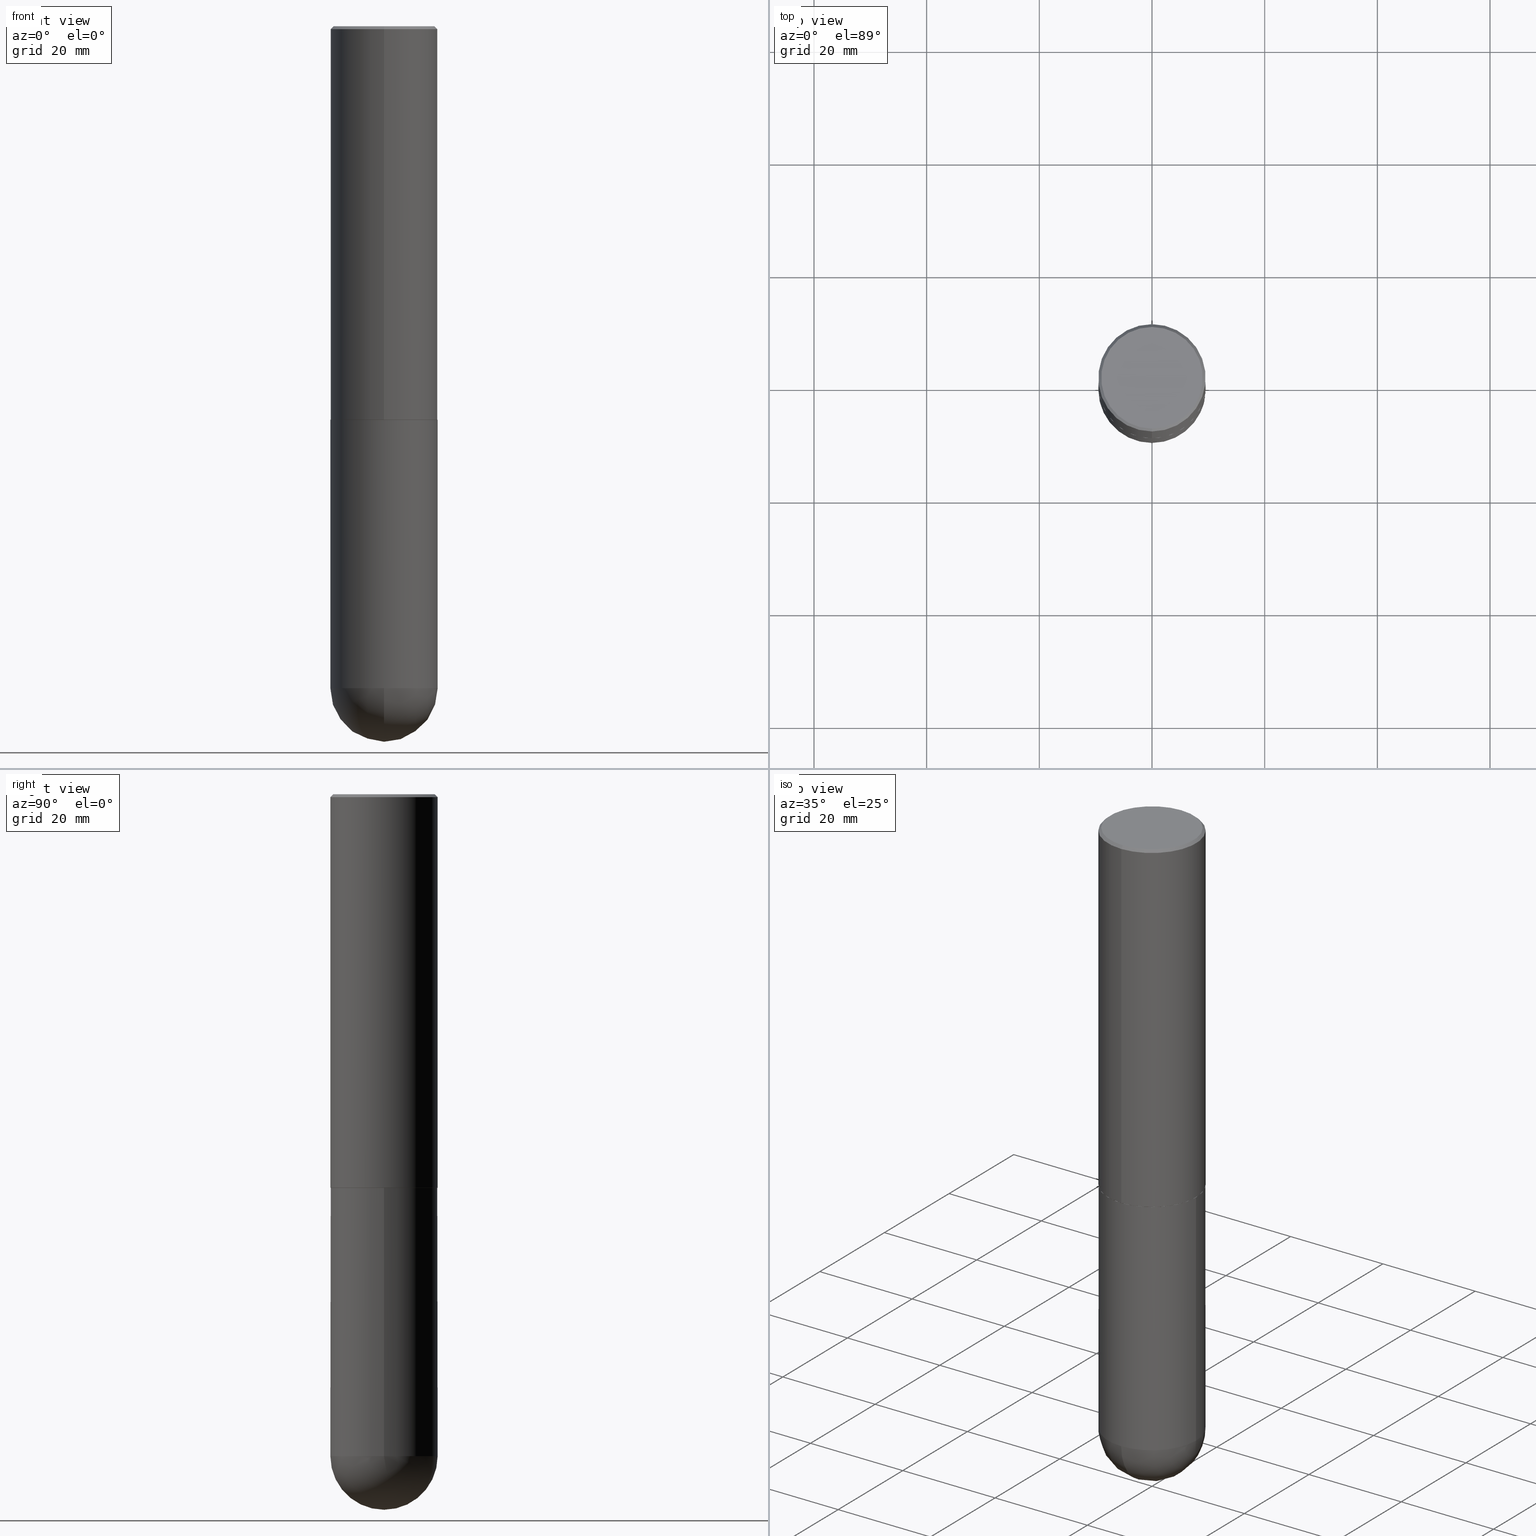
[diagram: canonical four-view strip — front | top / right | iso, engineering-drawing reading convention]
A machine part, canonical four-view strip (front | top / right | iso — engineering-drawing reading convention). The complete STEP part file that produces these views, byte-faithful:
ISO-10303-21;
HEADER;
FILE_DESCRIPTION (( 'STEP AP203' ),
    '1' );
FILE_NAME ('31788.STEP',
    '2024-02-21T16:55:15',
    ( '' ),
    ( '' ),
    'SwSTEP 2.0',
    'SolidWorks 2023',
    '' );
FILE_SCHEMA (( 'CONFIG_CONTROL_DESIGN' ));
ENDSEC;

DATA;
#1 = ADVANCED_FACE ( 'NONE', ( #82 ), #261, .F. ) ;
#2 = ORIENTED_EDGE ( 'NONE', *, *, #32, .T. ) ;
#3 = CARTESIAN_POINT ( 'NONE',  ( 1.131029322860625676E-28, -1.614810119214955014E-14, -4.625000000000000000 ) ) ;
#4 = CARTESIAN_POINT ( 'NONE',  ( -2.572686749164323153E-15, -0.3750000000000000555, -0.01999999999999877570 ) ) ;
#5 = DIRECTION ( 'NONE',  ( -2.444844981584964810E-29, 3.492374691176482632E-15, 1.000000000000000000 ) ) ;
#6 = DIRECTION ( 'NONE',  ( -6.982962677686266711E-15, -1.000000000000000000, 2.921762560068730595E-15 ) ) ;
#7 = EDGE_CURVE ( 'NONE', #310, #104, #276, .T. ) ;
#8 = CIRCLE ( 'NONE', #312, 0.3750000000000003886 ) ;
#9 = LOCAL_TIME ( 11, 55, 15.00000000000000000, #364 ) ;
#10 = VERTEX_POINT ( 'NONE', #109 ) ;
#11 = DIRECTION ( 'NONE',  ( -1.000000000000000000, 6.982962677686266711E-15, -4.883557194083113462E-29 ) ) ;
#12 = EDGE_LOOP ( 'NONE', ( #75, #291 ) ) ;
#13 = EDGE_LOOP ( 'NONE', ( #375, #194, #42, #262 ) ) ;
#14 = CARTESIAN_POINT ( 'NONE',  ( 6.720878854377069375E-29, -9.600538026044152034E-15, -2.749000000000000110 ) ) ;
#15 = PERSON_AND_ORGANIZATION_ROLE ( 'design_supplier' ) ;
#16 = AXIS2_PLACEMENT_3D ( 'NONE', #3, #136, #168 ) ;
#17 = CLOSED_SHELL ( 'NONE', ( #223, #153, #371, #296, #76 ) ) ;
#18 = EDGE_CURVE ( 'NONE', #154, #166, #46, .T. ) ;
#19 = APPROVAL_STATUS ( 'not_yet_approved' ) ;
#20 = DIRECTION ( 'NONE',  ( -2.444844981584964810E-29, 3.492374691176482632E-15, 1.000000000000000000 ) ) ;
#21 = DIRECTION ( 'NONE',  ( -2.445468806185136877E-29, 3.491481338843145188E-15, 1.000000000000000000 ) ) ;
#22 = ADVANCED_FACE ( 'NONE', ( #328 ), #321, .T. ) ;
#23 = AXIS2_PLACEMENT_3D ( 'NONE', #120, #307, #103 ) ;
#24 = CC_DESIGN_SECURITY_CLASSIFICATION ( #345, ( #266 ) ) ;
#25 = DIRECTION ( 'NONE',  ( -6.982962677686265922E-15, -1.000000000000000000, 3.492374691176482238E-15 ) ) ;
#26 = EDGE_CURVE ( 'NONE', #264, #188, #156, .T. ) ;
#27 = SPHERICAL_SURFACE ( 'NONE', #152, 0.3750000000000003886 ) ;
#28 = CARTESIAN_POINT ( 'NONE',  ( 6.723323699358650636E-29, -9.604030400735325562E-15, -2.749999999999999556 ) ) ;
#29 = ORIENTED_EDGE ( 'NONE', *, *, #301, .T. ) ;
#30 = CARTESIAN_POINT ( 'NONE',  ( -2.611628041454596160E-15, -0.3740000000000096581, -2.749999999999998224 ) ) ;
#31 = DIRECTION ( 'NONE',  ( -2.444844981584965091E-29, 3.492374691176482238E-15, 1.000000000000000000 ) ) ;
#32 = EDGE_CURVE ( 'NONE', #135, #392, #211, .T. ) ;
#33 = ORIENTED_EDGE ( 'NONE', *, *, #229, .T. ) ;
#34 = DIRECTION ( 'NONE',  ( 2.438088387897960049E-29, -3.491481338843145188E-15, -1.000000000000000000 ) ) ;
#35 = ORGANIZATION ( 'UNSPECIFIED', 'UNSPECIFIED', '' ) ;
#36 = CARTESIAN_POINT ( 'NONE',  ( 0.000000000000000000, 0.000000000000000000, 0.000000000000000000 ) ) ;
#37 = EDGE_LOOP ( 'NONE', ( #218, #236, #191, #128 ) ) ;
#38 = CARTESIAN_POINT ( 'NONE',  ( 4.889689963169950991E-31, -6.984749382352994551E-17, -0.02000000000000008715 ) ) ;
#39 = CARTESIAN_POINT ( 'NONE',  ( -2.504081769186607427E-15, -0.3549999999999997602, 1.398045117579700195E-15 ) ) ;
#40 = ADVANCED_FACE ( 'NONE', ( #47 ), #87, .T. ) ;
#41 = FACE_OUTER_BOUND ( 'NONE', #163, .T. ) ;
#42 = ORIENTED_EDGE ( 'NONE', *, *, #251, .F. ) ;
#43 = DIRECTION ( 'NONE',  ( -7.105427357600999492E-15, -1.000000000000000000, 0.000000000000000000 ) ) ;
#44 = SHAPE_DEFINITION_REPRESENTATION ( #224, #183 ) ;
#45 = CARTESIAN_POINT ( 'NONE',  ( 6.723323699358650636E-29, -9.604030400735325562E-15, -2.749999999999999556 ) ) ;
#46 = CIRCLE ( 'NONE', #126, 0.3739999999999999991 ) ;
#47 = FACE_OUTER_BOUND ( 'NONE', #314, .T. ) ;
#48 = PERSON_AND_ORGANIZATION_ROLE ( 'creator' ) ;
#49 = CARTESIAN_POINT ( 'NONE',  ( 0.000000000000000000, 0.000000000000000000, 0.000000000000000000 ) ) ;
#50 = ADVANCED_FACE ( 'NONE', ( #107 ), #326, .T. ) ;
#51 = APPROVAL_ROLE ( '' ) ;
#52 = CARTESIAN_POINT ( 'NONE',  ( 0.3750000000000001110, -2.618611004132350411E-15, 1.828566290923476483E-29 ) ) ;
#53 = CARTESIAN_POINT ( 'NONE',  ( 6.720878854377069375E-29, -9.600538026044152034E-15, -2.749000000000000110 ) ) ;
#54 = CIRCLE ( 'NONE', #219, 0.3549999999999997602 ) ;
#55 = COORDINATED_UNIVERSAL_TIME_OFFSET ( 5, 0, .BEHIND. ) ;
#56 = APPROVAL_PERSON_ORGANIZATION ( #234, #309, #361 ) ;
#57 = CLOSED_SHELL ( 'NONE', ( #117, #93, #40, #358, #22, #50, #244, #1 ) ) ;
#58 = LINE ( 'NONE', #185, #157 ) ;
#59 = PERSON_AND_ORGANIZATION_ROLE ( 'classification_officer' ) ;
#60 = EDGE_CURVE ( 'NONE', #354, #137, #140, .T. ) ;
#61 = CARTESIAN_POINT ( 'NONE',  ( -0.3750000000000001110, -1.021030217788372352E-14, -4.625000000000000000 ) ) ;
#62 = CARTESIAN_POINT ( 'NONE',  ( -3.869018579184010415E-45, 5.526756365908368716E-31, 1.582521022120498680E-16 ) ) ;
#63 = VECTOR ( 'NONE', #409, 39.37007874015748143 ) ;
#64 = DIRECTION ( 'NONE',  ( -2.445468806185136597E-29, 3.491481338843145583E-15, 1.000000000000000000 ) ) ;
#65 = CARTESIAN_POINT ( 'NONE',  ( 2.618611004132350016E-15, 0.3749999999999998890, -0.02000000000000139513 ) ) ;
#66 = CARTESIAN_POINT ( 'NONE',  ( 2.660982545421643429E-15, 0.3739999999999903957, -2.750000000000000444 ) ) ;
#67 = AXIS2_PLACEMENT_3D ( 'NONE', #213, #277, #369 ) ;
#68 = LENGTH_MEASURE_WITH_UNIT ( LENGTH_MEASURE( 0.02539999999999999897 ), #308 );
#69 = EDGE_LOOP ( 'NONE', ( #114, #225, #252, #322 ) ) ;
#70 = EDGE_CURVE ( 'NONE', #154, #188, #116, .T. ) ;
#71 = VERTEX_POINT ( 'NONE', #61 ) ;
#72 = ORIENTED_EDGE ( 'NONE', *, *, #145, .F. ) ;
#73 = LINE ( 'NONE', #4, #351 ) ;
#74 = AXIS2_PLACEMENT_3D ( 'NONE', #386, #390, #206 ) ;
#75 = ORIENTED_EDGE ( 'NONE', *, *, #272, .F. ) ;
#76 = ADVANCED_FACE ( 'NONE', ( #303 ), #300, .T. ) ;
#77 = ORIENTED_EDGE ( 'NONE', *, *, #7, .T. ) ;
#78 = DIRECTION ( 'NONE',  ( -2.444844981584964810E-29, 3.492374691176482632E-15, 1.000000000000000000 ) ) ;
#79 = VECTOR ( 'NONE', #92, 39.37007874015748143 ) ;
#80 = CC_DESIGN_APPROVAL ( #171, ( #345 ) ) ;
#81 =( NAMED_UNIT ( * ) SI_UNIT ( $, .STERADIAN. ) SOLID_ANGLE_UNIT ( ) );
#82 = FACE_OUTER_BOUND ( 'NONE', #410, .T. ) ;
#83 = EDGE_CURVE ( 'NONE', #408, #310, #367, .T. ) ;
#84 = CARTESIAN_POINT ( 'NONE',  ( 0.000000000000000000, 0.000000000000000000, 0.000000000000000000 ) ) ;
#85 = APPROVAL_ROLE ( '' ) ;
#86 = PERSON_AND_ORGANIZATION_ROLE ( 'creator' ) ;
#87 = CONICAL_SURFACE ( 'NONE', #227, 0.3749999999999999445, 0.7853981633974471688 ) ;
#88 = AXIS2_PLACEMENT_3D ( 'NONE', #28, #134, #6 ) ;
#89 = APPLICATION_CONTEXT ( 'configuration controlled 3d designs of mechanical parts and assemblies' ) ;
#90 = EDGE_CURVE ( 'NONE', #264, #135, #58, .T. ) ;
#91 = DIRECTION ( 'NONE',  ( -2.444844981584964810E-29, 3.492374691176482632E-15, 1.000000000000000000 ) ) ;
#92 = DIRECTION ( 'NONE',  ( -4.937700262167413974E-15, -0.7071067811869555797, 0.7071067811861394548 ) ) ;
#93 = ADVANCED_FACE ( 'NONE', ( #245 ), #270, .T. ) ;
#94 = DIRECTION ( 'NONE',  ( -6.982962677686266711E-15, -1.000000000000000000, 3.492374691176482238E-15 ) ) ;
#95 = PRODUCT_RELATED_PRODUCT_CATEGORY ( 'detail', '', ( #332 ) ) ;
#96 = CIRCLE ( 'NONE', #125, 0.3750000000000001110 ) ;
#97 = LOCAL_TIME ( 11, 55, 15.00000000000000000, #273 ) ;
#98 = DIMENSIONAL_EXPONENTS ( 1.000000000000000000, 0.000000000000000000, 0.000000000000000000, 0.000000000000000000, 0.000000000000000000, 0.000000000000000000, 0.000000000000000000 ) ;
#99 = EDGE_LOOP ( 'NONE', ( #387, #233, #283, #150 ) ) ;
#100 = CARTESIAN_POINT ( 'NONE',  ( -2.664535259100265651E-15, -0.3750000000000165978, -4.624999999999999112 ) ) ;
#101 = DIRECTION ( 'NONE',  ( -1.000000000000000000, 7.105427357601001070E-15, -4.926315508542082329E-29 ) ) ;
#102 = ORIENTED_EDGE ( 'NONE', *, *, #164, .T. ) ;
#103 = DIRECTION ( 'NONE',  ( 1.000000000000000000, -6.982962677686270655E-15, 0.000000000000000000 ) ) ;
#104 = VERTEX_POINT ( 'NONE', #298 ) ;
#105 = VECTOR ( 'NONE', #400, 39.37007874015748143 ) ;
#106 = LINE ( 'NONE', #320, #63 ) ;
#107 = FACE_OUTER_BOUND ( 'NONE', #37, .T. ) ;
#108 = CARTESIAN_POINT ( 'NONE',  ( -0.3750000000000001110, 2.664535259100376486E-15, -1.844600658845590159E-29 ) ) ;
#109 = CARTESIAN_POINT ( 'NONE',  ( 2.548781377355486324E-15, 0.3549999999999997602, -1.081540913155600656E-15 ) ) ;
#110 = ORIENTED_EDGE ( 'NONE', *, *, #90, .F. ) ;
#111 = DIRECTION ( 'NONE',  ( 1.000000000000000000, 0.000000000000000000, 0.000000000000000000 ) ) ;
#112 = EDGE_CURVE ( 'NONE', #192, #10, #54, .T. ) ;
#113 = AXIS2_PLACEMENT_3D ( 'NONE', #412, #131, #253 ) ;
#114 = ORIENTED_EDGE ( 'NONE', *, *, #301, .F. ) ;
#115 = APPROVAL_STATUS ( 'not_yet_approved' ) ;
#116 = LINE ( 'NONE', #151, #105 ) ;
#117 = ADVANCED_FACE ( 'NONE', ( #149 ), #242, .T. ) ;
#118 = PERSON ( 'UNSPECIFIED', 'UNSPECIFIED', 'UNSPECIFIED', ('UNSPECIFIED'), ('UNSPECIFIED'), ('UNSPECIFIED') ) ;
#119 = AXIS2_PLACEMENT_3D ( 'NONE', #286, #226, #317 ) ;
#120 = CARTESIAN_POINT ( 'NONE',  ( 1.131029322860625676E-28, -1.614810119214955014E-14, -4.625000000000000000 ) ) ;
#121 = DIRECTION ( 'NONE',  ( 6.982962677686265922E-15, 1.000000000000000000, 0.000000000000000000 ) ) ;
#122 = EDGE_CURVE ( 'NONE', #188, #264, #380, .T. ) ;
#123 = LINE ( 'NONE', #30, #79 ) ;
#124 = DIRECTION ( 'NONE',  ( -2.445468806185136597E-29, 3.491481338843145583E-15, 1.000000000000000000 ) ) ;
#125 = AXIS2_PLACEMENT_3D ( 'NONE', #246, #64, #216 ) ;
#126 = AXIS2_PLACEMENT_3D ( 'NONE', #352, #78, #232 ) ;
#127 = EDGE_LOOP ( 'NONE', ( #348, #198, #162, #316, #132 ) ) ;
#128 = ORIENTED_EDGE ( 'NONE', *, *, #122, .F. ) ;
#129 = CARTESIAN_POINT ( 'NONE',  ( 1.191225862093391378E-28, -1.790862693487176734E-14, -5.000000000000000000 ) ) ;
#130 = AXIS2_PLACEMENT_3D ( 'NONE', #315, #34, #159 ) ;
#131 = DIRECTION ( 'NONE',  ( 2.444844981584964810E-29, -3.492374691176482632E-15, -1.000000000000000000 ) ) ;
#132 = ORIENTED_EDGE ( 'NONE', *, *, #251, .T. ) ;
#133 = EDGE_CURVE ( 'NONE', #166, #264, #123, .T. ) ;
#134 = DIRECTION ( 'NONE',  ( -2.444844981584964810E-29, 3.492374691176482632E-15, 1.000000000000000000 ) ) ;
#135 = VERTEX_POINT ( 'NONE', #311 ) ;
#136 = DIRECTION ( 'NONE',  ( -2.445468806185136597E-29, 3.491481338843145583E-15, 1.000000000000000000 ) ) ;
#137 = VERTEX_POINT ( 'NONE', #382 ) ;
#138 = DIRECTION ( 'NONE',  ( -6.982962677686266711E-15, -1.000000000000000000, 3.494488891895537218E-15 ) ) ;
#139 = CYLINDRICAL_SURFACE ( 'NONE', #378, 0.3750000000000001110 ) ;
#140 = CIRCLE ( 'NONE', #170, 0.3750000000000003886 ) ;
#141 = APPROVAL_PERSON_ORGANIZATION ( #398, #201, #85 ) ;
#142 = ORIENTED_EDGE ( 'NONE', *, *, #193, .T. ) ;
#143 = EDGE_LOOP ( 'NONE', ( #384, #102, #346, #72 ) ) ;
#144 = APPLICATION_PROTOCOL_DEFINITION ( 'international standard', 'config_control_design', 1994, #187 ) ;
#145 = EDGE_CURVE ( 'NONE', #137, #71, #96, .T. ) ;
#146 = DIRECTION ( 'NONE',  ( -6.982962677686265922E-15, -1.000000000000000000, 2.913971193241877216E-15 ) ) ;
#147 = PERSON_AND_ORGANIZATION ( #118, #35 ) ;
#148 = AXIS2_PLACEMENT_3D ( 'NONE', #304, #368, #111 ) ;
#149 = FACE_OUTER_BOUND ( 'NONE', #99, .T. ) ;
#150 = ORIENTED_EDGE ( 'NONE', *, *, #133, .F. ) ;
#151 = CARTESIAN_POINT ( 'NONE',  ( 2.657429831742841742E-15, 0.3739999999999903957, -2.750000000000000444 ) ) ;
#152 = AXIS2_PLACEMENT_3D ( 'NONE', #376, #383, #196 ) ;
#153 = ADVANCED_FACE ( 'NONE', ( #248 ), #27, .T. ) ;
#154 = VERTEX_POINT ( 'NONE', #66 ) ;
#155 = MANIFOLD_SOLID_BREP ( 'Body-Move/Copy2[1]', #17 ) ;
#156 = CIRCLE ( 'NONE', #258, 0.3750000000000004441 ) ;
#157 = VECTOR ( 'NONE', #181, 39.37007874015748143 ) ;
#158 = AXIS2_PLACEMENT_3D ( 'NONE', #36, #203, #292 ) ;
#159 = DIRECTION ( 'NONE',  ( -1.000000000000000000, 6.982962677686265922E-15, -4.876176775795935793E-29 ) ) ;
#160 = DIRECTION ( 'NONE',  ( -4.851104656540957964E-15, -0.7071067811865491270, -0.7071067811865459074 ) ) ;
#161 = CIRCLE ( 'NONE', #215, 0.3549999999999997602 ) ;
#162 = ORIENTED_EDGE ( 'NONE', *, *, #7, .F. ) ;
#163 = EDGE_LOOP ( 'NONE', ( #77, #33 ) ) ;
#164 = EDGE_CURVE ( 'NONE', #354, #362, #8, .T. ) ;
#165 = CARTESIAN_POINT ( 'NONE',  ( 2.664535259100411196E-15, 0.3749999999999907851, -2.749000000000000998 ) ) ;
#166 = VERTEX_POINT ( 'NONE', #287 ) ;
#167 = ORIENTED_EDGE ( 'NONE', *, *, #229, .F. ) ;
#168 = DIRECTION ( 'NONE',  ( 1.000000000000000000, -6.982962677686270655E-15, 0.000000000000000000 ) ) ;
#169 = ORIENTED_EDGE ( 'NONE', *, *, #406, .F. ) ;
#170 = AXIS2_PLACEMENT_3D ( 'NONE', #404, #207, #121 ) ;
#171 = APPROVAL ( #267, 'UNSPECIFIED' ) ;
#172 = DIRECTION ( 'NONE',  ( -2.444844981584964810E-29, 3.492374691176482632E-15, 1.000000000000000000 ) ) ;
#173 = COORDINATED_UNIVERSAL_TIME_OFFSET ( 5, 0, .BEHIND. ) ;
#174 = CARTESIAN_POINT ( 'NONE',  ( 4.889689963169950991E-31, -6.984749382352994551E-17, -0.02000000000000008715 ) ) ;
#175 = APPLICATION_PROTOCOL_DEFINITION ( 'international standard', 'config_control_design', 1994, #89 ) ;
#176 = DIRECTION ( 'NONE',  ( -6.982962677686266711E-15, -1.000000000000000000, 3.492374691176482632E-15 ) ) ;
#177 = DATE_TIME_ROLE ( 'classification_date' ) ;
#178 = CC_DESIGN_PERSON_AND_ORGANIZATION_ASSIGNMENT ( #333, #48, ( #266 ) ) ;
#179 = AXIS2_PLACEMENT_3D ( 'NONE', #279, #124, #342 ) ;
#180 = DATE_AND_TIME ( #265, #197 ) ;
#181 = DIRECTION ( 'NONE',  ( -2.444844981584965091E-29, 3.492374691176482238E-15, 1.000000000000000000 ) ) ;
#182 = DIRECTION ( 'NONE',  ( -6.982962677686265922E-15, -1.000000000000000000, 2.913971193241877216E-15 ) ) ;
#183 = ADVANCED_BREP_SHAPE_REPRESENTATION ( '31788', ( #155, #281, #148 ), #257 ) ;
#184 = CIRCLE ( 'NONE', #67, 0.3750000000000001110 ) ;
#185 = CARTESIAN_POINT ( 'NONE',  ( -2.618611004132351594E-15, -0.3750000000000002220, 1.309640509191181727E-15 ) ) ;
#186 = CARTESIAN_POINT ( 'NONE',  ( 0.3750000000000001110, -1.549344844111645238E-14, -4.625000000000000000 ) ) ;
#187 = APPLICATION_CONTEXT ( 'configuration controlled 3d designs of mechanical parts and assemblies' ) ;
#188 = VERTEX_POINT ( 'NONE', #165 ) ;
#189 = AXIS2_PLACEMENT_3D ( 'NONE', #338, #370, #268 ) ;
#190 = DIRECTION ( 'NONE',  ( -6.982962677686266711E-15, -1.000000000000000000, 3.494488891895537218E-15 ) ) ;
#191 = ORIENTED_EDGE ( 'NONE', *, *, #133, .T. ) ;
#192 = VERTEX_POINT ( 'NONE', #39 ) ;
#193 = EDGE_CURVE ( 'NONE', #71, #362, #275, .T. ) ;
#194 = ORIENTED_EDGE ( 'NONE', *, *, #60, .T. ) ;
#195 = CIRCLE ( 'NONE', #305, 0.3749999999999999445 ) ;
#196 = DIRECTION ( 'NONE',  ( 6.982962677686266711E-15, 1.000000000000000000, -2.913971193241878005E-15 ) ) ;
#197 = LOCAL_TIME ( 11, 55, 15.00000000000000000, #55 ) ;
#198 = ORIENTED_EDGE ( 'NONE', *, *, #374, .T. ) ;
#199 = DIRECTION ( 'NONE',  ( -2.444844981584964810E-29, 3.492374691176482632E-15, 1.000000000000000000 ) ) ;
#200 = ORIENTED_EDGE ( 'NONE', *, *, #112, .T. ) ;
#201 = APPROVAL ( #115, 'UNSPECIFIED' ) ;
#202 = CARTESIAN_POINT ( 'NONE',  ( 1.097917345069237163E-28, -1.662228356028959886E-14, -4.625000000000000000 ) ) ;
#203 = DIRECTION ( 'NONE',  ( -2.444844981584964810E-29, 3.492374691176482632E-15, 1.000000000000000000 ) ) ;
#204 = CIRCLE ( 'NONE', #23, 0.3750000000000001110 ) ;
#205 = COORDINATED_UNIVERSAL_TIME_OFFSET ( 5, 0, .BEHIND. ) ;
#206 = DIRECTION ( 'NONE',  ( 6.982962677686265922E-15, 1.000000000000000000, -3.492374691176482238E-15 ) ) ;
#207 = DIRECTION ( 'NONE',  ( 1.000000000000000000, -6.982962677686265922E-15, 4.883557194083112340E-29 ) ) ;
#208 = AXIS2_PLACEMENT_3D ( 'NONE', #373, #306, #25 ) ;
#209 = APPROVAL_DATE_TIME ( #260, #171 ) ;
#210 = DIRECTION ( 'NONE',  ( -6.982962677686266711E-15, -1.000000000000000000, 2.921762560068730595E-15 ) ) ;
#211 = CIRCLE ( 'NONE', #353, 0.3749999999999999445 ) ;
#212 = PERSON_AND_ORGANIZATION ( #118, #35 ) ;
#213 = CARTESIAN_POINT ( 'NONE',  ( 1.131029322860625676E-28, -1.614810119214955014E-14, -4.625000000000000000 ) ) ;
#214 = DIRECTION ( 'NONE',  ( -6.982962677686266711E-15, -1.000000000000000000, 3.492374691176482238E-15 ) ) ;
#215 = AXIS2_PLACEMENT_3D ( 'NONE', #62, #407, #94 ) ;
#216 = DIRECTION ( 'NONE',  ( 1.000000000000000000, -6.982962677686270655E-15, 0.000000000000000000 ) ) ;
#217 = CC_DESIGN_PERSON_AND_ORGANIZATION_ASSIGNMENT ( #147, #86, ( #385 ) ) ;
#218 = ORIENTED_EDGE ( 'NONE', *, *, #70, .F. ) ;
#219 = AXIS2_PLACEMENT_3D ( 'NONE', #302, #20, #214 ) ;
#220 = LOCAL_TIME ( 11, 55, 15.00000000000000000, #205 ) ;
#221 = ORIENTED_EDGE ( 'NONE', *, *, #406, .T. ) ;
#222 = ORIENTED_EDGE ( 'NONE', *, *, #341, .T. ) ;
#223 = ADVANCED_FACE ( 'NONE', ( #290 ), #139, .T. ) ;
#224 = PRODUCT_DEFINITION_SHAPE ( 'NONE', 'NONE',  #385 ) ;
#225 = ORIENTED_EDGE ( 'NONE', *, *, #122, .T. ) ;
#226 = DIRECTION ( 'NONE',  ( -2.445468806185136597E-29, 3.491481338843145583E-15, 1.000000000000000000 ) ) ;
#227 = AXIS2_PLACEMENT_3D ( 'NONE', #174, #325, #256 ) ;
#228 = ORIENTED_EDGE ( 'NONE', *, *, #83, .T. ) ;
#229 = EDGE_CURVE ( 'NONE', #104, #310, #360, .T. ) ;
#230 = DIRECTION ( 'NONE',  ( -2.445468806185136597E-29, 3.491481338843145583E-15, 1.000000000000000000 ) ) ;
#231 = FACE_OUTER_BOUND ( 'NONE', #13, .T. ) ;
#232 = DIRECTION ( 'NONE',  ( -6.982962677686266711E-15, -1.000000000000000000, 2.921762560068730595E-15 ) ) ;
#233 = ORIENTED_EDGE ( 'NONE', *, *, #70, .T. ) ;
#234 = PERSON_AND_ORGANIZATION ( #118, #35 ) ;
#235 = AXIS2_PLACEMENT_3D ( 'NONE', #49, #91, #176 ) ;
#236 = ORIENTED_EDGE ( 'NONE', *, *, #18, .T. ) ;
#237 = DATE_AND_TIME ( #243, #97 ) ;
#238 = EDGE_CURVE ( 'NONE', #362, #408, #184, .T. ) ;
#239 = DIRECTION ( 'NONE',  ( 1.000000000000000000, -6.982962677686265922E-15, 4.876176775795935793E-29 ) ) ;
#240 = DATE_AND_TIME ( #293, #405 ) ;
#241 = DATE_TIME_ROLE ( 'creation_date' ) ;
#242 = CONICAL_SURFACE ( 'NONE', #189, 0.3739999999999999991, 0.7853981633980288146 ) ;
#243 = CALENDAR_DATE ( 2024, 21, 2 ) ;
#244 = ADVANCED_FACE ( 'NONE', ( #339 ), #372, .F. ) ;
#245 = FACE_OUTER_BOUND ( 'NONE', #288, .T. ) ;
#246 = CARTESIAN_POINT ( 'NONE',  ( 1.131029322860625676E-28, -1.614810119214955014E-14, -4.625000000000000000 ) ) ;
#247 = CONICAL_SURFACE ( 'NONE', #113, 0.3749999999999999445, 0.7853981633974471688 ) ;
#248 = FACE_OUTER_BOUND ( 'NONE', #143, .T. ) ;
#249 = EDGE_LOOP ( 'NONE', ( #294, #169, #222, #381 ) ) ;
#250 = CIRCLE ( 'NONE', #88, 0.3739999999999999991 ) ;
#251 = EDGE_CURVE ( 'NONE', #408, #137, #204, .T. ) ;
#252 = ORIENTED_EDGE ( 'NONE', *, *, #90, .T. ) ;
#253 = DIRECTION ( 'NONE',  ( 6.982962677686266711E-15, 1.000000000000000000, -3.494488891895537218E-15 ) ) ;
#254 = CARTESIAN_POINT ( 'NONE',  ( -2.618611004132286119E-15, -0.3750000000000100475, -2.748999999999999222 ) ) ;
#255 = CARTESIAN_POINT ( 'NONE',  ( 0.3750000000000000555, -1.222018468595100145E-14, -2.750000000000000000 ) ) ;
#256 = DIRECTION ( 'NONE',  ( 6.982962677686266711E-15, 1.000000000000000000, -3.494488891895537218E-15 ) ) ;
#257 =( GEOMETRIC_REPRESENTATION_CONTEXT ( 3 ) GLOBAL_UNCERTAINTY_ASSIGNED_CONTEXT ( ( #274 ) ) GLOBAL_UNIT_ASSIGNED_CONTEXT ( ( #335, #297, #81 ) ) REPRESENTATION_CONTEXT ( 'NONE', 'WORKASPACE' ) );
#258 = AXIS2_PLACEMENT_3D ( 'NONE', #14, #199, #146 ) ;
#259 = DIRECTION ( 'NONE',  ( 6.982962677686266711E-15, 1.000000000000000000, -2.913971193241878005E-15 ) ) ;
#260 = DATE_AND_TIME ( #336, #220 ) ;
#261 = PLANE ( 'NONE',  #74 ) ;
#262 = ORIENTED_EDGE ( 'NONE', *, *, #238, .F. ) ;
#263 = MECHANICAL_CONTEXT ( 'NONE', #187, 'mechanical' ) ;
#264 = VERTEX_POINT ( 'NONE', #254 ) ;
#265 = CALENDAR_DATE ( 2024, 21, 2 ) ;
#266 = PRODUCT_DEFINITION_FORMATION_WITH_SPECIFIED_SOURCE ( 'ANY', '', #332, .NOT_KNOWN. ) ;
#267 = APPROVAL_STATUS ( 'not_yet_approved' ) ;
#268 = DIRECTION ( 'NONE',  ( -6.982962677686266711E-15, -1.000000000000000000, 2.921762560068730595E-15 ) ) ;
#269 = PERSON_AND_ORGANIZATION ( #118, #35 ) ;
#270 = CYLINDRICAL_SURFACE ( 'NONE', #235, 0.3750000000000002220 ) ;
#271 = SECURITY_CLASSIFICATION_LEVEL ( 'unclassified' ) ;
#272 = EDGE_CURVE ( 'NONE', #166, #154, #250, .T. ) ;
#273 = COORDINATED_UNIVERSAL_TIME_OFFSET ( 5, 0, .BEHIND. ) ;
#274 = UNCERTAINTY_MEASURE_WITH_UNIT (LENGTH_MEASURE( 1.000000000000000082E-05 ), #335, 'distance_accuracy_value', 'NONE');
#275 = CIRCLE ( 'NONE', #16, 0.3750000000000001110 ) ;
#276 = CIRCLE ( 'NONE', #119, 0.3750000000000000555 ) ;
#277 = DIRECTION ( 'NONE',  ( -2.445468806185136597E-29, 3.491481338843145583E-15, 1.000000000000000000 ) ) ;
#278 = CC_DESIGN_APPROVAL ( #309, ( #385 ) ) ;
#279 = CARTESIAN_POINT ( 'NONE',  ( 6.725039217009124520E-29, -9.601573681818649859E-15, -2.750000000000000000 ) ) ;
#280 = CARTESIAN_POINT ( 'NONE',  ( 2.664535259100376880E-15, 0.3750000000000002220, -1.309640509191181727E-15 ) ) ;
#281 = MANIFOLD_SOLID_BREP ( 'Body-Move/Copy2[2]', #57 ) ;
#282 = EDGE_CURVE ( 'NONE', #392, #135, #195, .T. ) ;
#283 = ORIENTED_EDGE ( 'NONE', *, *, #26, .F. ) ;
#284 = FACE_OUTER_BOUND ( 'NONE', #249, .T. ) ;
#285 = AXIS2_PLACEMENT_3D ( 'NONE', #202, #11, #259 ) ;
#286 = CARTESIAN_POINT ( 'NONE',  ( 6.725039217009124520E-29, -9.601573681818649859E-15, -2.750000000000000000 ) ) ;
#287 = CARTESIAN_POINT ( 'NONE',  ( -2.611628041454596160E-15, -0.3740000000000096581, -2.749999999999998224 ) ) ;
#288 = EDGE_LOOP ( 'NONE', ( #397, #29, #396, #110 ) ) ;
#289 = ORIENTED_EDGE ( 'NONE', *, *, #238, .T. ) ;
#290 = FACE_OUTER_BOUND ( 'NONE', #127, .T. ) ;
#291 = ORIENTED_EDGE ( 'NONE', *, *, #18, .F. ) ;
#292 = DIRECTION ( 'NONE',  ( -6.982962677686266711E-15, -1.000000000000000000, 3.492374691176482632E-15 ) ) ;
#293 = CALENDAR_DATE ( 2024, 21, 2 ) ;
#294 = ORIENTED_EDGE ( 'NONE', *, *, #334, .F. ) ;
#295 = DATE_AND_TIME ( #329, #9 ) ;
#296 = ADVANCED_FACE ( 'NONE', ( #41 ), #379, .F. ) ;
#297 =( NAMED_UNIT ( * ) PLANE_ANGLE_UNIT ( ) SI_UNIT ( $, .RADIAN. ) );
#298 = CARTESIAN_POINT ( 'NONE',  ( -0.3750000000000000555, -1.021030217788372194E-14, -2.750000000000000000 ) ) ;
#299 = AXIS2_PLACEMENT_3D ( 'NONE', #53, #401, #182 ) ;
#300 = CYLINDRICAL_SURFACE ( 'NONE', #403, 0.3750000000000001110 ) ;
#301 = EDGE_CURVE ( 'NONE', #188, #392, #377, .T. ) ;
#302 = CARTESIAN_POINT ( 'NONE',  ( -3.869018579184010415E-45, 5.526756365908368716E-31, 1.582521022120498680E-16 ) ) ;
#303 = FACE_OUTER_BOUND ( 'NONE', #319, .T. ) ;
#304 = CARTESIAN_POINT ( 'NONE',  ( 0.000000000000000000, 0.000000000000000000, 0.000000000000000000 ) ) ;
#305 = AXIS2_PLACEMENT_3D ( 'NONE', #350, #347, #190 ) ;
#306 = DIRECTION ( 'NONE',  ( -2.444844981584964810E-29, 3.492374691176482238E-15, 1.000000000000000000 ) ) ;
#307 = DIRECTION ( 'NONE',  ( -2.445468806185136597E-29, 3.491481338843145583E-15, 1.000000000000000000 ) ) ;
#308 =( LENGTH_UNIT ( ) NAMED_UNIT ( * ) SI_UNIT ( $, .METRE. ) );
#309 = APPROVAL ( #19, 'UNSPECIFIED' ) ;
#310 = VERTEX_POINT ( 'NONE', #255 ) ;
#311 = CARTESIAN_POINT ( 'NONE',  ( -2.572686749164323153E-15, -0.3750000000000000555, -0.01999999999999877570 ) ) ;
#312 = AXIS2_PLACEMENT_3D ( 'NONE', #323, #101, #43 ) ;
#313 = CC_DESIGN_DATE_AND_TIME_ASSIGNMENT ( #237, #177, ( #345 ) ) ;
#314 = EDGE_LOOP ( 'NONE', ( #393, #349, #2, #357 ) ) ;
#315 = CARTESIAN_POINT ( 'NONE',  ( 2.618611004132417464E-15, 0.3749999999999903966, -2.750000000000000888 ) ) ;
#316 = ORIENTED_EDGE ( 'NONE', *, *, #83, .F. ) ;
#317 = DIRECTION ( 'NONE',  ( 1.000000000000000000, -6.982962677686266711E-15, 0.000000000000000000 ) ) ;
#318 = CC_DESIGN_DATE_AND_TIME_ASSIGNMENT ( #180, #241, ( #385 ) ) ;
#319 = EDGE_LOOP ( 'NONE', ( #359, #142, #289, #228, #167 ) ) ;
#320 = CARTESIAN_POINT ( 'NONE',  ( 2.618611004132350016E-15, 0.3749999999999998890, -0.02000000000000139513 ) ) ;
#321 = CYLINDRICAL_SURFACE ( 'NONE', #158, 0.3750000000000002220 ) ;
#322 = ORIENTED_EDGE ( 'NONE', *, *, #282, .F. ) ;
#323 = CARTESIAN_POINT ( 'NONE',  ( 1.097917345069237163E-28, -1.662228356028959886E-14, -4.625000000000000000 ) ) ;
#324 = SPHERICAL_SURFACE ( 'NONE', #285, 0.3750000000000003886 ) ;
#325 = DIRECTION ( 'NONE',  ( 2.444844981584964810E-29, -3.492374691176482632E-15, -1.000000000000000000 ) ) ;
#326 = CONICAL_SURFACE ( 'NONE', #344, 0.3739999999999999991, 0.7853981633980288146 ) ;
#327 = CC_DESIGN_APPROVAL ( #201, ( #266 ) ) ;
#328 = FACE_OUTER_BOUND ( 'NONE', #69, .T. ) ;
#329 = CALENDAR_DATE ( 2024, 21, 2 ) ;
#330 = DIRECTION ( 'NONE',  ( -2.445468806185136597E-29, 3.491481338843145583E-15, 1.000000000000000000 ) ) ;
#331 = PERSON_AND_ORGANIZATION ( #118, #35 ) ;
#332 = PRODUCT ( '31788', '31788', '', ( #263 ) ) ;
#333 = PERSON_AND_ORGANIZATION ( #118, #35 ) ;
#334 = EDGE_CURVE ( 'NONE', #192, #135, #73, .T. ) ;
#335 =( CONVERSION_BASED_UNIT ( 'INCH', #68 ) LENGTH_UNIT ( ) NAMED_UNIT ( #98 ) );
#336 = CALENDAR_DATE ( 2024, 21, 2 ) ;
#337 = DESIGN_CONTEXT ( 'detailed design', #89, 'design' ) ;
#338 = CARTESIAN_POINT ( 'NONE',  ( 6.723323699358650636E-29, -9.604030400735325562E-15, -2.749999999999999556 ) ) ;
#339 = FACE_OUTER_BOUND ( 'NONE', #12, .T. ) ;
#340 = VECTOR ( 'NONE', #356, 39.37007874015748143 ) ;
#341 = EDGE_CURVE ( 'NONE', #10, #392, #106, .T. ) ;
#342 = DIRECTION ( 'NONE',  ( 1.000000000000000000, -6.982962677686266711E-15, 0.000000000000000000 ) ) ;
#343 = CC_DESIGN_PERSON_AND_ORGANIZATION_ASSIGNMENT ( #212, #15, ( #266 ) ) ;
#344 = AXIS2_PLACEMENT_3D ( 'NONE', #45, #172, #210 ) ;
#345 = SECURITY_CLASSIFICATION ( '', '', #271 ) ;
#346 = ORIENTED_EDGE ( 'NONE', *, *, #193, .F. ) ;
#347 = DIRECTION ( 'NONE',  ( -2.444844981584964810E-29, 3.492374691176482632E-15, 1.000000000000000000 ) ) ;
#348 = ORIENTED_EDGE ( 'NONE', *, *, #145, .T. ) ;
#349 = ORIENTED_EDGE ( 'NONE', *, *, #334, .T. ) ;
#350 = CARTESIAN_POINT ( 'NONE',  ( 4.889689963169950991E-31, -6.984749382352994551E-17, -0.02000000000000008715 ) ) ;
#351 = VECTOR ( 'NONE', #160, 39.37007874015748143 ) ;
#352 = CARTESIAN_POINT ( 'NONE',  ( 6.723323699358650636E-29, -9.604030400735325562E-15, -2.749999999999999556 ) ) ;
#353 = AXIS2_PLACEMENT_3D ( 'NONE', #38, #5, #138 ) ;
#354 = VERTEX_POINT ( 'NONE', #129 ) ;
#355 = DIRECTION ( 'NONE',  ( 1.000000000000000000, -6.982962677686265922E-15, 4.876176775795935793E-29 ) ) ;
#356 = DIRECTION ( 'NONE',  ( -2.445468806185136877E-29, 3.491481338843145188E-15, 1.000000000000000000 ) ) ;
#357 = ORIENTED_EDGE ( 'NONE', *, *, #341, .F. ) ;
#358 = ADVANCED_FACE ( 'NONE', ( #284 ), #247, .T. ) ;
#359 = ORIENTED_EDGE ( 'NONE', *, *, #374, .F. ) ;
#360 = CIRCLE ( 'NONE', #179, 0.3750000000000000555 ) ;
#361 = APPROVAL_ROLE ( '' ) ;
#362 = VERTEX_POINT ( 'NONE', #100 ) ;
#363 = APPROVAL_DATE_TIME ( #295, #309 ) ;
#364 = COORDINATED_UNIVERSAL_TIME_OFFSET ( 5, 0, .BEHIND. ) ;
#365 = VECTOR ( 'NONE', #21, 39.37007874015748143 ) ;
#366 = APPROVAL_PERSON_ORGANIZATION ( #269, #171, #51 ) ;
#367 = LINE ( 'NONE', #52, #365 ) ;
#368 = DIRECTION ( 'NONE',  ( 0.000000000000000000, 0.000000000000000000, 1.000000000000000000 ) ) ;
#369 = DIRECTION ( 'NONE',  ( 1.000000000000000000, -6.982962677686270655E-15, 0.000000000000000000 ) ) ;
#370 = DIRECTION ( 'NONE',  ( -2.444844981584964810E-29, 3.492374691176482632E-15, 1.000000000000000000 ) ) ;
#371 = ADVANCED_FACE ( 'NONE', ( #231 ), #324, .T. ) ;
#372 = PLANE ( 'NONE',  #208 ) ;
#373 = CARTESIAN_POINT ( 'NONE',  ( 6.723323699358652878E-29, -9.604030400735328717E-15, -2.750000000000000000 ) ) ;
#374 = EDGE_CURVE ( 'NONE', #71, #104, #389, .T. ) ;
#375 = ORIENTED_EDGE ( 'NONE', *, *, #164, .F. ) ;
#376 = CARTESIAN_POINT ( 'NONE',  ( 1.097917345069237163E-28, -1.662228356028959886E-14, -4.625000000000000000 ) ) ;
#377 = LINE ( 'NONE', #280, #411 ) ;
#378 = AXIS2_PLACEMENT_3D ( 'NONE', #388, #230, #355 ) ;
#379 = PLANE ( 'NONE',  #130 ) ;
#380 = CIRCLE ( 'NONE', #299, 0.3750000000000004441 ) ;
#381 = ORIENTED_EDGE ( 'NONE', *, *, #282, .T. ) ;
#382 = CARTESIAN_POINT ( 'NONE',  ( 2.618611004132463218E-15, 0.3749999999999838463, -4.625000000000000888 ) ) ;
#383 = DIRECTION ( 'NONE',  ( -1.000000000000000000, 6.982962677686266711E-15, -4.883557194083113462E-29 ) ) ;
#384 = ORIENTED_EDGE ( 'NONE', *, *, #60, .F. ) ;
#385 = PRODUCT_DEFINITION ( 'UNKNOWN', '', #266, #337 ) ;
#386 = CARTESIAN_POINT ( 'NONE',  ( 2.478951750578623026E-15, 0.3549999999999997602, -1.160666964261625738E-15 ) ) ;
#387 = ORIENTED_EDGE ( 'NONE', *, *, #272, .T. ) ;
#388 = CARTESIAN_POINT ( 'NONE',  ( 0.000000000000000000, 0.000000000000000000, 0.000000000000000000 ) ) ;
#389 = LINE ( 'NONE', #108, #340 ) ;
#390 = DIRECTION ( 'NONE',  ( 2.444844981584964810E-29, -3.492374691176482238E-15, -1.000000000000000000 ) ) ;
#391 = CC_DESIGN_PERSON_AND_ORGANIZATION_ASSIGNMENT ( #331, #59, ( #345 ) ) ;
#392 = VERTEX_POINT ( 'NONE', #65 ) ;
#393 = ORIENTED_EDGE ( 'NONE', *, *, #112, .F. ) ;
#394 = PERSON_AND_ORGANIZATION ( #118, #35 ) ;
#395 = APPROVAL_DATE_TIME ( #240, #201 ) ;
#396 = ORIENTED_EDGE ( 'NONE', *, *, #32, .F. ) ;
#397 = ORIENTED_EDGE ( 'NONE', *, *, #26, .T. ) ;
#398 = PERSON_AND_ORGANIZATION ( #118, #35 ) ;
#399 = CC_DESIGN_PERSON_AND_ORGANIZATION_ASSIGNMENT ( #394, #402, ( #332 ) ) ;
#400 = DIRECTION ( 'NONE',  ( 5.024295867790978808E-15, 0.7071067811869604647, 0.7071067811861345698 ) ) ;
#401 = DIRECTION ( 'NONE',  ( -2.444844981584964810E-29, 3.492374691176482632E-15, 1.000000000000000000 ) ) ;
#402 = PERSON_AND_ORGANIZATION_ROLE ( 'design_owner' ) ;
#403 = AXIS2_PLACEMENT_3D ( 'NONE', #84, #330, #239 ) ;
#404 = CARTESIAN_POINT ( 'NONE',  ( 1.097917345069237163E-28, -1.662228356028959886E-14, -4.625000000000000000 ) ) ;
#405 = LOCAL_TIME ( 11, 55, 15.00000000000000000, #173 ) ;
#406 = EDGE_CURVE ( 'NONE', #10, #192, #161, .T. ) ;
#407 = DIRECTION ( 'NONE',  ( -2.444844981584964810E-29, 3.492374691176482632E-15, 1.000000000000000000 ) ) ;
#408 = VERTEX_POINT ( 'NONE', #186 ) ;
#409 = DIRECTION ( 'NONE',  ( 4.937700262164541731E-15, 0.7071067811865442421, -0.7071067811865507924 ) ) ;
#410 = EDGE_LOOP ( 'NONE', ( #221, #200 ) ) ;
#411 = VECTOR ( 'NONE', #31, 39.37007874015748143 ) ;
#412 = CARTESIAN_POINT ( 'NONE',  ( 4.889689963169950991E-31, -6.984749382352994551E-17, -0.02000000000000008715 ) ) ;
ENDSEC;
END-ISO-10303-21;
